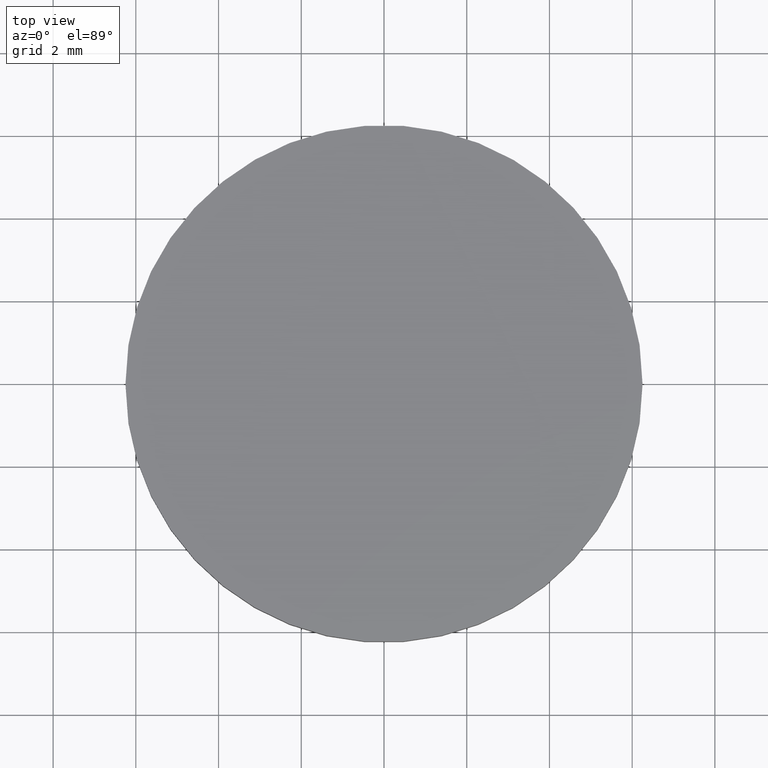
[diagram: clean part render]
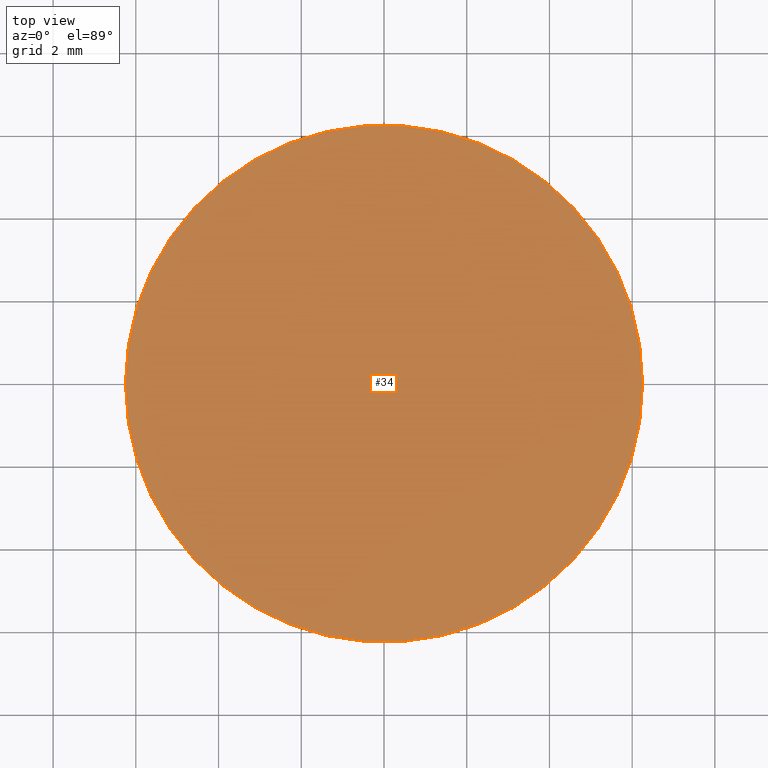
[diagram: same view with one face highlighted and labeled with its STEP entity id]
A machine part, top view. The second image highlights one B-rep face of the part: STEP entity #34.
In plain terms, the highlighted planar face has unit normal (0, 0, 1).
Its self-contained STEP definition (entity closure, byte-faithful):
#3 = DIRECTION ( 'NONE',  ( 0.0000000000000000000, 0.0000000000000000000, 1.000000000000000000 ) ) ;
#9 = FACE_OUTER_BOUND ( 'NONE', #20, .T. ) ;
#11 = CIRCLE ( 'NONE', #32, 6.249999999999998224 ) ;
#20 = EDGE_LOOP ( 'NONE', ( #154, #55 ) ) ;
#25 = DIRECTION ( 'NONE',  ( 1.000000000000000000, 0.0000000000000000000, 0.0000000000000000000 ) ) ;
#32 = AXIS2_PLACEMENT_3D ( 'NONE', #130, #83, #25 ) ;
#34 = ADVANCED_FACE ( 'NONE', ( #9 ), #108, .T. ) ;
#55 = ORIENTED_EDGE ( 'NONE', *, *, #59, .T. ) ;
#57 = DIRECTION ( 'NONE',  ( 1.000000000000000000, 0.0000000000000000000, -0.0000000000000000000 ) ) ;
#59 = EDGE_CURVE ( 'NONE', #161, #82, #11, .T. ) ;
#72 = CARTESIAN_POINT ( 'NONE',  ( 6.249999999999998224, 7.654042494670955634E-16, 1.050000000000000044 ) ) ;
#82 = VERTEX_POINT ( 'NONE', #114 ) ;
#83 = DIRECTION ( 'NONE',  ( 0.0000000000000000000, 0.0000000000000000000, 1.000000000000000000 ) ) ;
#84 = EDGE_CURVE ( 'NONE', #82, #161, #147, .T. ) ;
#89 = AXIS2_PLACEMENT_3D ( 'NONE', #158, #3, #146 ) ;
#107 = CARTESIAN_POINT ( 'NONE',  ( 0.0000000000000000000, 0.0000000000000000000, 1.050000000000000044 ) ) ;
#108 = PLANE ( 'NONE',  #134 ) ;
#114 = CARTESIAN_POINT ( 'NONE',  ( -6.249999999999998224, 0.0000000000000000000, 1.050000000000000044 ) ) ;
#130 = CARTESIAN_POINT ( 'NONE',  ( 0.0000000000000000000, 0.0000000000000000000, 1.050000000000000044 ) ) ;
#134 = AXIS2_PLACEMENT_3D ( 'NONE', #107, #174, #57 ) ;
#146 = DIRECTION ( 'NONE',  ( 1.000000000000000000, 0.0000000000000000000, 0.0000000000000000000 ) ) ;
#147 = CIRCLE ( 'NONE', #89, 6.249999999999998224 ) ;
#154 = ORIENTED_EDGE ( 'NONE', *, *, #84, .T. ) ;
#158 = CARTESIAN_POINT ( 'NONE',  ( 0.0000000000000000000, 0.0000000000000000000, 1.050000000000000044 ) ) ;
#161 = VERTEX_POINT ( 'NONE', #72 ) ;
#174 = DIRECTION ( 'NONE',  ( 0.0000000000000000000, 0.0000000000000000000, 1.000000000000000000 ) ) ;